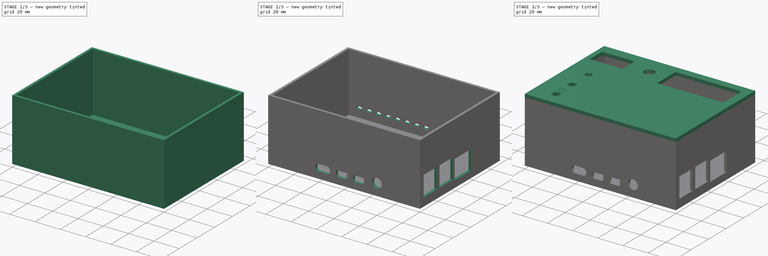
[diagram: build sequence overview — one tinted view per stage of 3, left to right]
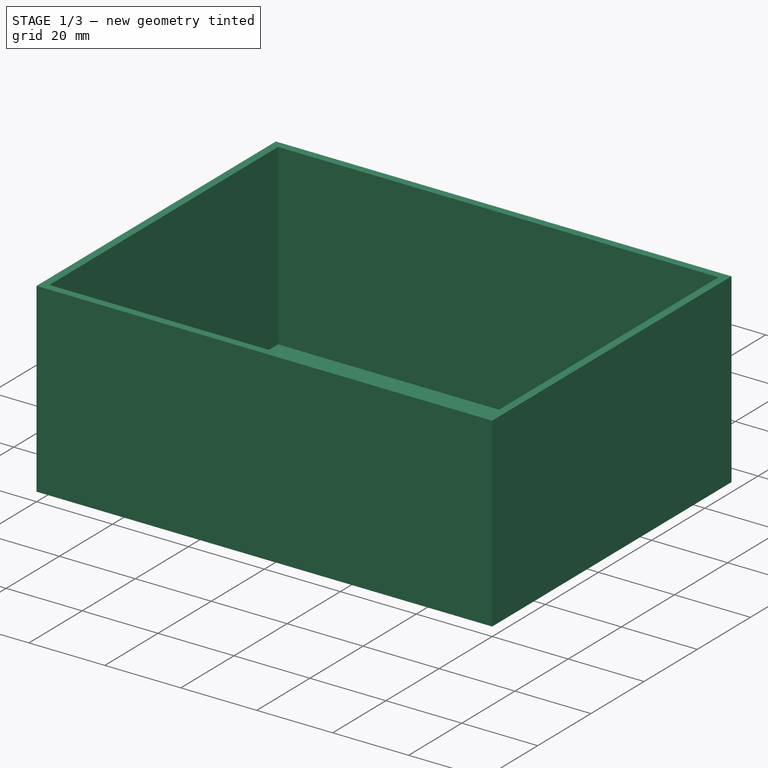
[diagram: stage 1 of 3 — iso view after this stage's code; geometry added in this stage tinted green]
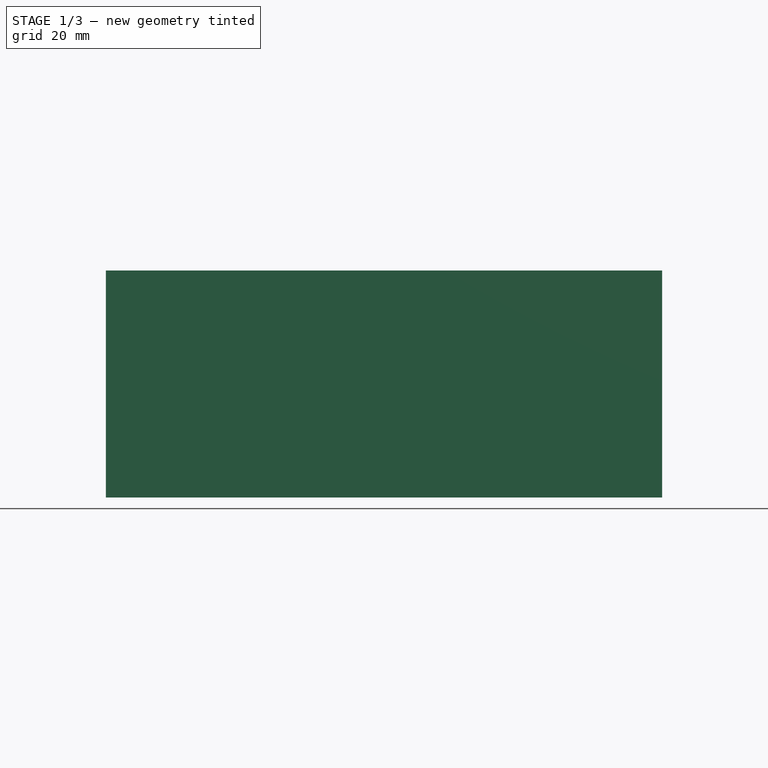
[diagram: stage 1 of 3 — front view after this stage's code; geometry added in this stage tinted green]
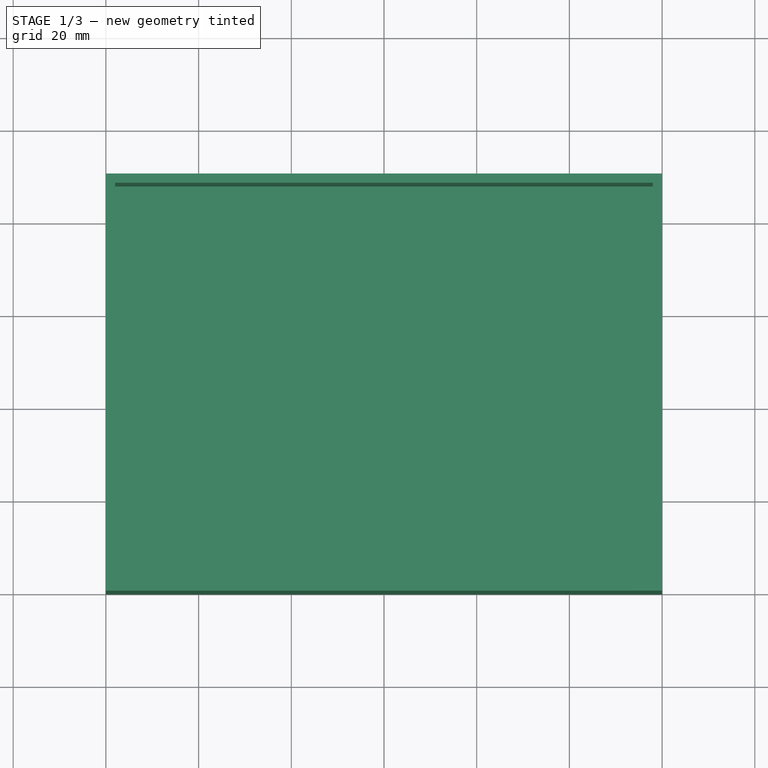
[diagram: stage 1 of 3 — top view after this stage's code; geometry added in this stage tinted green]
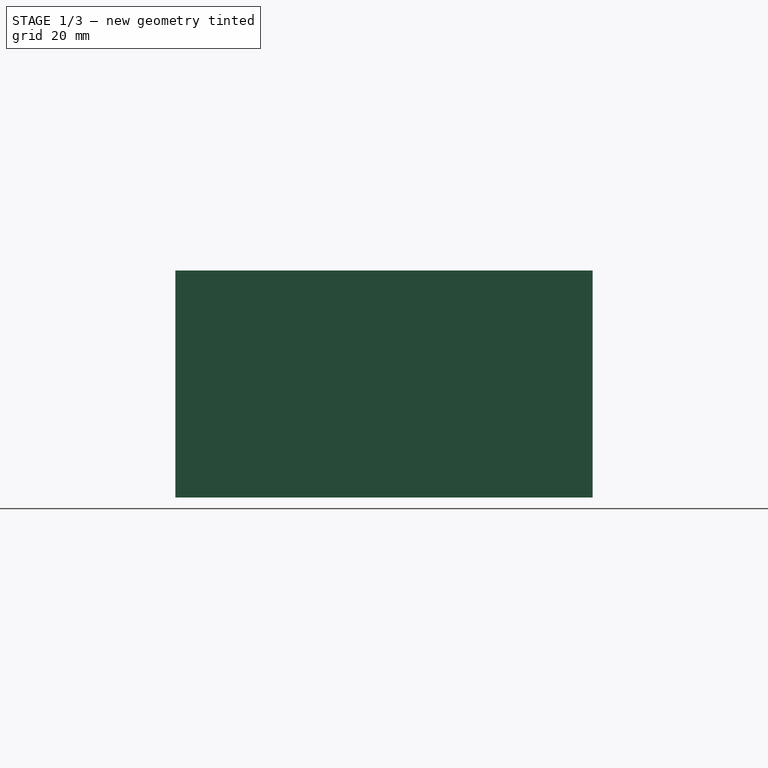
[diagram: stage 1 of 3 — right view after this stage's code; geometry added in this stage tinted green]
FCSTD DOCUMENT  (FreeCAD 0.19R24291 (Git))
Label: Case
License: All rights reserved
LicenseURL: http://en.wikipedia.org/wiki/All_rights_reserved
objects: Part::Feature×45, Sketcher::SketchObject×8, App::Part×4, PartDesign::Pad×4, PartDesign::Pocket×3, PartDesign::Body×2, PartDesign::ShapeBinder×1
note: 70 computed .brp shape members not serialized (recipe doc carries the construction recipe); baked Part::Feature solids carry a one-line shape summary decoded from their .brp

FEATURE [Part::Feature] Part__Feature  label="OLED 0.96' 128x64"
  shape: bbox 28.41 x 27.41 x 11.01 mm, 1667 faces, 5 solids (baked)
FEATURE [Part::Feature] Part__Feature001  label="662k - XC6206P182MR-G"
  Placement = pos=(-2.34296,7.147,-0.01) rot=(0,1,0;3.14159rad)
  shape: bbox 2.897 x 2.795 x 1.299 mm, 136 faces, 5 solids (baked)
FEATURE [Part::Feature] Part__Feature002  label="R SMD 472"
  Placement = pos=(6.12076,-0.312507,-0.01) rot=(0.707107,-0.707107,0;3.14159rad)
  shape: bbox 0.888 x 1.702 x 0.559 mm, 60 faces, 3 solids (baked)
FEATURE [Part::Feature] Part__Feature003  label="R SMD 473"
  Placement = pos=(4.26315,-0.312507,-0.01) rot=(0.707107,-0.707107,0;3.14159rad)
  shape: bbox 0.888 x 1.702 x 0.559 mm, 60 faces, 3 solids (baked)
FEATURE [Part::Feature] Part__Feature004  label="R SMD 474"
  Placement = pos=(2.42609,-0.312507,-0.01) rot=(0.707107,-0.707107,0;3.14159rad)
  shape: bbox 0.888 x 1.702 x 0.559 mm, 60 faces, 3 solids (baked)
FEATURE [Part::Feature] Part__Feature005  label="R SMD 914"
  Placement = pos=(7.97776,-0.312507,-0.01) rot=(-0.707107,0.707107,0;3.14159rad)
  shape: bbox 0.888 x 1.702 x 0.559 mm, 69 faces, 3 solids (baked)
FEATURE [Part::Feature] Part__Feature006  label="R SMD 915"
  Placement = pos=(8.59148,5.84697,-0.01) rot=(0,1,0;3.14159rad)
  shape: bbox 1.702 x 0.888 x 0.559 mm, 60 faces, 3 solids (baked)
FEATURE [Part::Feature] Part__Feature007  label="C SMD 0603"
  Placement = pos=(12.274,-0.304716,-0.01) rot=(0.707107,-0.707107,0;3.14159rad)
  shape: bbox 0.8 x 1.6 x 0.8 mm, 42 faces (baked)
FEATURE [Part::Feature] Part__Feature008  label="C SMD 0604"
  Placement = pos=(-6.73315,-0.304716,-0.81) rot=(0,0,1;1.5708rad)
  shape: bbox 0.8 x 1.6 x 0.8 mm, 42 faces (baked)
FEATURE [Part::Feature] Part__Feature009  label="C SMD 0605"
  Placement = pos=(10.0843,-0.304716,-0.01) rot=(0.707107,-0.707107,0;3.14159rad)
  shape: bbox 0.8 x 1.6 x 0.8 mm, 42 faces (baked)
FEATURE [Part::Feature] Part__Feature010  label="C SMD 0606"
  Placement = pos=(-1.28601,-0.304716,-0.01) rot=(0.707107,-0.707107,0;3.14159rad)
  shape: bbox 0.8 x 1.6 x 0.8 mm, 42 faces (baked)
FEATURE [Part::Feature] Part__Feature011  label="C SMD 0607"
  Placement = pos=(-6.20375,7.04452,-0.81) rot=(0,0,1;1.5708rad)
  shape: bbox 0.8 x 1.6 x 0.8 mm, 42 faces (baked)
FEATURE [Part::Feature] Part__Feature012  label="C SMD 0608"
  Placement = pos=(-9.69546,-0.304716,-0.01) rot=(0.707107,-0.707107,0;3.14159rad)
  shape: bbox 0.8 x 1.6 x 0.8 mm, 42 faces (baked)
FEATURE [Part::Feature] Part__Feature013  label="C SMD 0609"
  Placement = pos=(-12.1979,-0.304716,-0.01) rot=(0.707107,-0.707107,0;3.14159rad)
  shape: bbox 0.8 x 1.6 x 0.8 mm, 42 faces (baked)
FEATURE [Part::Feature] Part__Feature014  label="C SMD 0610"
  Placement = pos=(-4.83158,-0.304716,-0.01) rot=(0.707107,-0.707107,0;3.14159rad)
  shape: bbox 0.8 x 1.6 x 0.8 mm, 42 faces (baked)
FEATURE [Part::Feature] Part__Feature015  label="SOD323F_DIO"
  Placement = pos=(0.57176,-0.309924,-0.01) rot=(0.707107,0.707107,0;3.14159rad)
  shape: bbox 0.75 x 2.5 x 0.819 mm, 32 faces, 4 solids (baked)
FEATURE [App::Part] Pantalla_OLED_0_96__128x64  label="Pantalla OLED 0.96' 128x64"
  Group = -> [Part__Feature,Part__Feature001,Part__Feature002,Part__Feature003,Part__Feature004,Part__Feature005,Part__Feature006,Part__Feature007,Part__Feature008,Part__Feature009,Part__Feature010,Part__Feature011,Part__Feature012,Part__Feature013,Part__Feature014,Part__Feature015]
  Origin = -> Origin
  Placement = pos=(17,73,46) rot=(0,0,1;0rad)
FEATURE [Part::Feature] Part__Feature016  label="PCB, RPi4ModelB"
  shape: bbox 85 x 1.6 x 56 mm, 136 faces (baked)
FEATURE [Part::Feature] Part__Feature017  label="Broadcom BCM2711B0 CPU, RPi4ModelB"
  Placement = pos=(-13.25,0.8,-4.5) rot=(0,0,1;0rad)
  shape: bbox 15 x 2.3 x 15 mm, 29 faces, 2 solids (baked)
FEATURE [Part::Feature] Part__Feature018  label="2.54 mm DUPONT MALE PIN HEADER, POE, 2X2, RPi4ModelB"
  Placement = pos=(19,0.8,-18.36) rot=(0,0,1;0rad)
  shape: bbox 5.08 x 11.3 x 5.08 mm, 102 faces, 5 solids (baked)
FEATURE [Part::Feature] Part__Feature019  label="2.54 mm DUPONT MALE PIN HEADER, IO, 2X20, RPi4ModelB"
  Placement = pos=(-10,0.8,-24.5) rot=(0,0,1;0rad)
  shape: bbox 50.8 x 11.3 x 5.08 mm, 858 faces, 41 solids (baked)
FEATURE [Part::Feature] Part__Feature020  label="Camera Connector, RPi4ModelB"
  Placement = pos=(4,0.8,16.5) rot=(0,1,0;1.5708rad)
  shape: bbox 5.072 x 5.68 x 22.4 mm, 995 faces, 17 solids (baked)
FEATURE [Part::Feature] Part__Feature021  label="Microphone Plug, RPi4ModelB"
  Placement = pos=(11.5,0.8,21.65) rot=(0,0,1;0rad)
  shape: bbox 7.229 x 7.798 x 15 mm, 323 faces, 5 solids (baked)
FEATURE [Part::Feature] Part__Feature022  label="Display Connector, RPi4ModelB"
  Placement = pos=(-38.5,0.8,0) rot=(0,-1,0;1.5708rad)
  shape: bbox 5.072 x 5.68 x 22.4 mm, 995 faces, 17 solids (baked)
FEATURE [Part::Feature] Part__Feature023  label="Gigabit Ethernet Port, RPi4ModelB"
  Placement = pos=(45.5,7.55,-17.75) rot=(0,1,0;1.5708rad)
  shape: bbox 21.6 x 17.23 x 16.33 mm, 403 faces (baked)
FEATURE [Part::Feature] Part__Feature024  label="Female Micro HDMI Connector, RPi4ModelB"
  Placement = pos=(-3,0.8,27.3875) rot=(0,0,1;0rad)
  shape: bbox 6.501 x 3.516 x 7.501 mm, 1058 faces (baked)
FEATURE [Part::Feature] Part__Feature025  label="Female Micro HDMI Connector, RPi4ModelB001"
  Placement = pos=(-16.5,0.8,27.3875) rot=(0,0,1;0rad)
  shape: bbox 6.501 x 3.516 x 7.501 mm, 1058 faces (baked)
FEATURE [Part::Feature] Part__Feature026  label="Female USB Type C Connector, RPi4ModelB"
  Placement = pos=(-31.3,0.8,26.5419) rot=(0,0,1;0rad)
  shape: bbox 8.94 x 3.96 x 7.9 mm, 403 faces (baked)
FEATURE [Part::Feature] Part__Feature027  label="2X USB3.0 PORTS, RPi4ModelB"
  Placement = pos=(37.07,0.8,1) rot=(0,0,1;0rad)
  shape: bbox 17.47 x 19.41 x 15.83 mm, 1044 faces (baked)
FEATURE [Part::Feature] Part__Feature028  label="91D77 D9WHV 778K, 4 GB LPDDR4 SDRAM, RPi4ModelB"
  Placement = pos=(2.25,0.8,-4.5) rot=(0,0,1;0rad)
  shape: bbox 10 x 0.8 x 14.5 mm, 180 faces (baked)
FEATURE [Part::Feature] Part__Feature029  label="Cypress CYW43455 Wireless Module Cover, RPi4ModelB"
  Placement = pos=(-30.5,0.8,-14.5) rot=(0,0,1;0rad)
  shape: bbox 11 x 1.6 x 13 mm, 70 faces (baked)
FEATURE [Part::Feature] Part__Feature030  label="SD Card Slot, RPi4ModelB"
  Placement = pos=(-35.3,-0.8,-1e-14) rot=(0.707107,0,-0.707107;3.14159rad)
  shape: bbox 11.4 x 1.45 x 11.95 mm, 479 faces, 10 solids (baked)
FEATURE [Part::Feature] Part__Feature031  label="VIA VL805 PCIe USB 3.0 controller, RPi4ModelB"
  Placement = pos=(17.5,0.8,4) rot=(0,0,1;0rad)
  shape: bbox 8.8 x 0.8 x 8.8 mm, 398 faces (baked)
FEATURE [Part::Feature] Part__Feature032  label="2X USB2.0 PORTS, RPi4ModelB"
  Placement = pos=(37.065,0.65,19) rot=(0,0,1;0rad)
  shape: bbox 17.86 x 19.16 x 15.45 mm, 1086 faces (baked)
FEATURE [Part::Feature] Part__Feature033  label="Broadcom BCM54213PE Gigabit Ethernet Transceiver, RPi4ModelB"
  Placement = pos=(16.5,0.8,-10) rot=(0,0,1;0rad)
  shape: bbox 6.802 x 1.002 x 6.802 mm, 559 faces (baked)
FEATURE [Part::Feature] Part__Feature034  label="MxL7704 Universal PMIC, RPi4ModelB"
  Placement = pos=(-32.5,0.8,16) rot=(0,0,1;0rad)
  shape: bbox 5.4 x 0.8 x 5.4 mm, 311 faces (baked)
FEATURE [App::Part] Raspberry_Pi_4_Model_B  label="Raspberry Pi 4 Model B"
  Group = -> [Part__Feature016,Part__Feature017,Part__Feature018,Part__Feature019,Part__Feature020,Part__Feature021,Part__Feature022,Part__Feature023,Part__Feature024,Part__Feature025,Part__Feature026,Part__Feature027,Part__Feature028,Part__Feature029,Part__Feature030,Part__Feature031,Part__Feature032,Part__Feature033,Part__Feature034]
  Origin = -> Origin001
  Placement = pos=(74.5,30.5,5.5) rot=(1,0,0;1.5708rad)
FEATURE [Part::Feature] Part__Feature035  label="Push Switch_8x8_6pin_with Lock"
  Placement = pos=(17,29,40) rot=(0,0,1;0rad)
  shape: bbox 8.001 x 8.001 x 17.1 mm, 552 faces, 13 solids (baked)
FEATURE [Part::Feature] Part__Feature036  label="Buzzer_Passive"
  Placement = pos=(17,52,40) rot=(0,0,1;0rad)
  shape: bbox 12.83 x 12.83 x 10.65 mm, 50 faces, 4 solids (baked)
FEATURE [Part::Feature] Part__Feature038  label="4-7-display v2"
  Placement = pos=(62,64,50) rot=(1,0,0;1.5708rad)
  shape: bbox 50.6 x 19 x 14 mm, 230 faces (baked)
FEATURE [Part::Feature] Part__Feature039  label="Push Switch_8x8_6pin_with Lock001"
  Placement = pos=(17,11,40) rot=(0,0,1;0rad)
  shape: bbox 8.001 x 8.001 x 17.1 mm, 552 faces, 13 solids (baked)
FEATURE [Part::Feature] Part__Feature049  label="EC11-Base003"
  Placement = pos=(0,0,4.5) rot=(0,0,1;0rad)
  shape: bbox 11.7 x 12 x 8.7 mm, 30 faces (baked)
FEATURE [Part::Feature] Part__Feature050  label="EC11-Shaft-F001"
  Placement = pos=(0,0,4.5) rot=(0,0,1;0rad)
  shape: bbox 6 x 6 x 21.7 mm, 8 faces (baked)
FEATURE [Part::Feature] Part__Feature051  label="EC11-Housing-THT003"
  Placement = pos=(0,0,2.8) rot=(0,0,1;0rad)
  shape: bbox 12.4 x 14.9 x 8 mm, 379 faces, 7 solids (baked)
FEATURE [App::Part] EC11003
  Group = -> [Part__Feature049,Part__Feature050,Part__Feature051]
  Origin = -> Origin005
  Placement = pos=(47,74,43) rot=(0,0,1;0rad)
FEATURE [Sketcher::SketchObject] Sketch001
  FullyConstrained = true
  MapMode = 5
  Support = -> [XY_Plane006]
  sketch-geometry (4):
    g0: LineSegment StartX=0 StartY=0 StartZ=0 EndX=120 EndY=0 EndZ=0
    g1: LineSegment StartX=120 StartY=0 StartZ=0 EndX=120 EndY=90 EndZ=0
    g2: LineSegment StartX=120 StartY=90 StartZ=0 EndX=0 EndY=90 EndZ=0
    g3: LineSegment StartX=0 StartY=90 StartZ=0 EndX=0 EndY=0 EndZ=0
  constraints (11):
    c: Coincident(g0,g1)
    c: Coincident(g1,g2)
    c: Coincident(g2,g3)
    c: Coincident(g3,g0)
    c: Horizontal(g0)
    c: Horizontal(g2)
    c: Vertical(g1)
    c: Vertical(g3)
    c: Distance(g1) = 90
    c: Distance(g2) = 120
    c: Coincident(g-1,g0)
FEATURE [Part::Feature] Part__Feature052  label="BreadBoard"
  shape: bbox 83.8 x 8.01 x 10.57 mm, 314 faces (baked)
FEATURE [Part::Feature] Part__Feature053  label="BreadBoard001"
  shape: bbox 83.8 x 8.01 x 9.07 mm, 306 faces (baked)
FEATURE [Part::Feature] Part__Feature054  label="BreadBoard002"
  shape: bbox 83.8 x 8.01 x 35.74 mm, 3052 faces (baked)
FEATURE [App::Part] BreadBoard  label="BreadBoard003"
  Group = -> [Part__Feature052,Part__Feature053,Part__Feature054]
  Origin = -> Origin008
  Placement = pos=(74,32,47.5) rot=(0,-0.707107,0.707107;3.14159rad)
FEATURE [PartDesign::Pad] Pad
  Direction = (1,1,1)
  Length = 2
  Length2 = 100
  Profile = -> Sketch001
  Type = 0
FEATURE [Sketcher::SketchObject] Sketch
  FullyConstrained = true
  MapMode = 5
  Placement = pos=(0,0,2) rot=(0,0,1;0rad)
  Support = -> [Pad]
  sketch-geometry (8):
    g0: LineSegment StartX=0 StartY=0 StartZ=0 EndX=120 EndY=0 EndZ=0
    g1: LineSegment StartX=120 StartY=0 StartZ=0 EndX=120 EndY=90 EndZ=0
    g2: LineSegment StartX=120 StartY=90 StartZ=0 EndX=0 EndY=90 EndZ=0
    g3: LineSegment StartX=0 StartY=90 StartZ=0 EndX=0 EndY=0 EndZ=0
    g4: LineSegment StartX=2 StartY=2 StartZ=0 EndX=118 EndY=2 EndZ=0
    g5: LineSegment StartX=118 StartY=2 StartZ=0 EndX=118 EndY=88 EndZ=0
    g6: LineSegment StartX=118 StartY=88 StartZ=0 EndX=2 EndY=88 EndZ=0
    g7: LineSegment StartX=2 StartY=88 StartZ=0 EndX=2 EndY=2 EndZ=0
  constraints (23):
    c: Coincident(g0,g1)
    c: Coincident(g1,g2)
    c: Coincident(g2,g3)
    c: Coincident(g3,g0)
    c: Horizontal(g0)
    c: Horizontal(g2)
    c: Vertical(g1)
    c: Vertical(g3)
    c: Distance(g1) = 90
    c: Distance(g2) = 120
    c: Coincident(g0,g-1)
    c: Coincident(g4,g5)
    c: Coincident(g5,g6)
    c: Coincident(g6,g7)
    c: Coincident(g7,g4)
    c: Horizontal(g4)
    c: Horizontal(g6)
    c: Vertical(g5)
    c: Vertical(g7)
    c: DistanceY(g0,g4) = 2
    c: DistanceX(g0,g4) = 2
    c: DistanceX(g5,g1) = 2
    c: DistanceY(g5,g1) = 2
FEATURE [PartDesign::Pad] Pad001
  BaseFeature = -> Pad
  Direction = (1,1,1)
  Length = 47
  Length2 = 100
  Profile = -> Sketch
  Type = 0
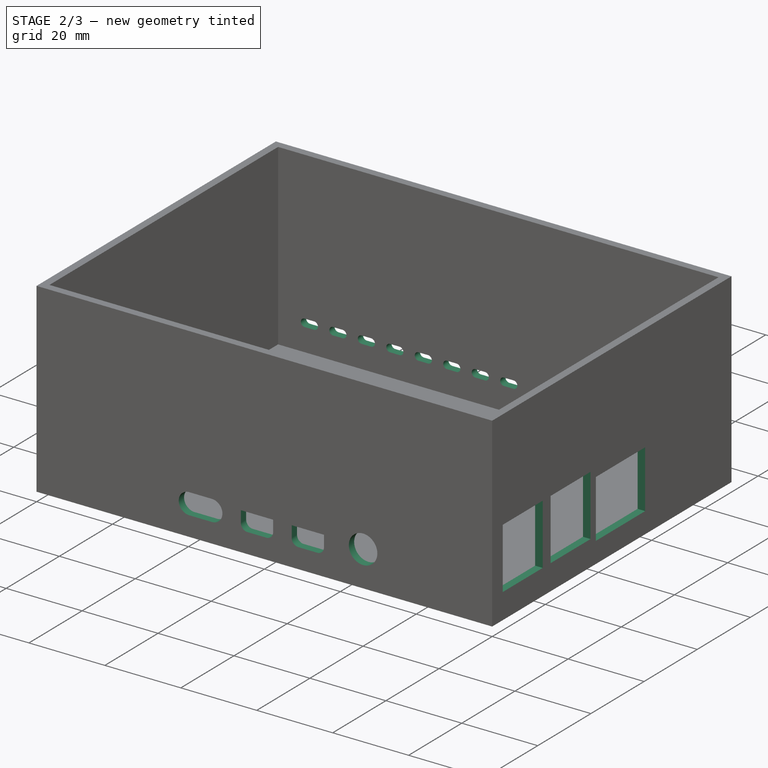
[diagram: stage 2 of 3 — iso view after this stage's code; geometry added in this stage tinted green]
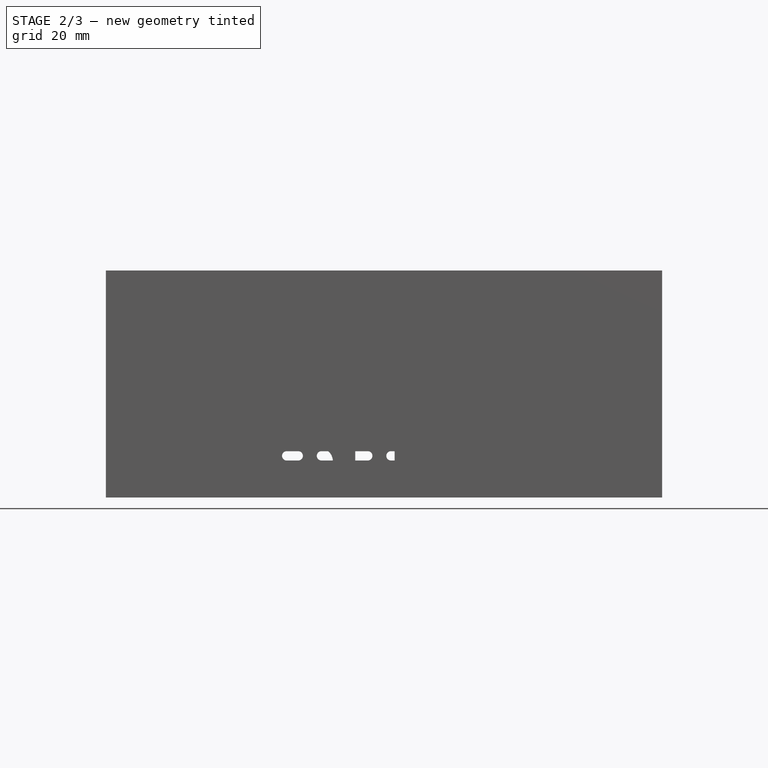
[diagram: stage 2 of 3 — front view after this stage's code; geometry added in this stage tinted green]
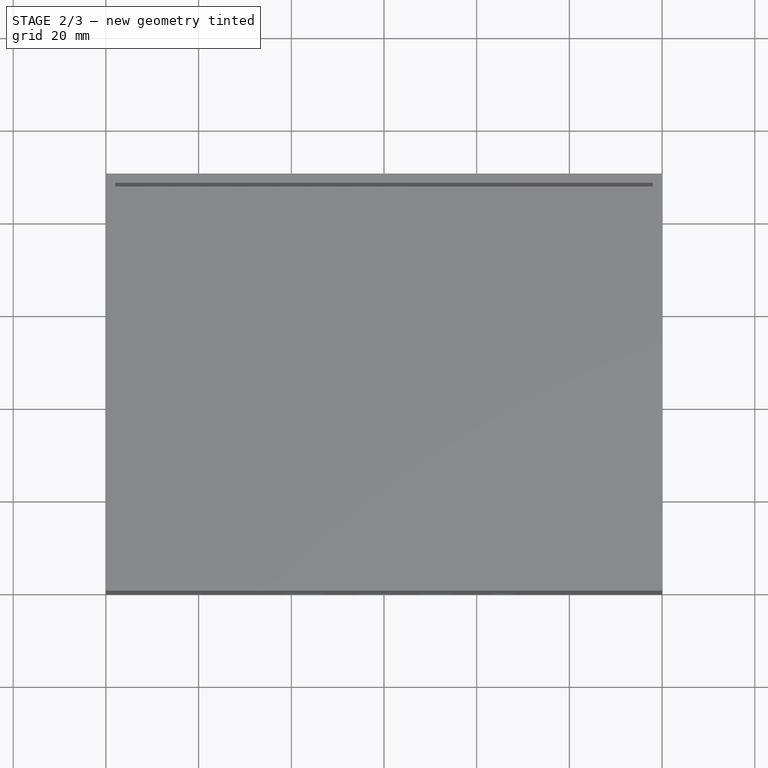
[diagram: stage 2 of 3 — top view after this stage's code; geometry added in this stage tinted green]
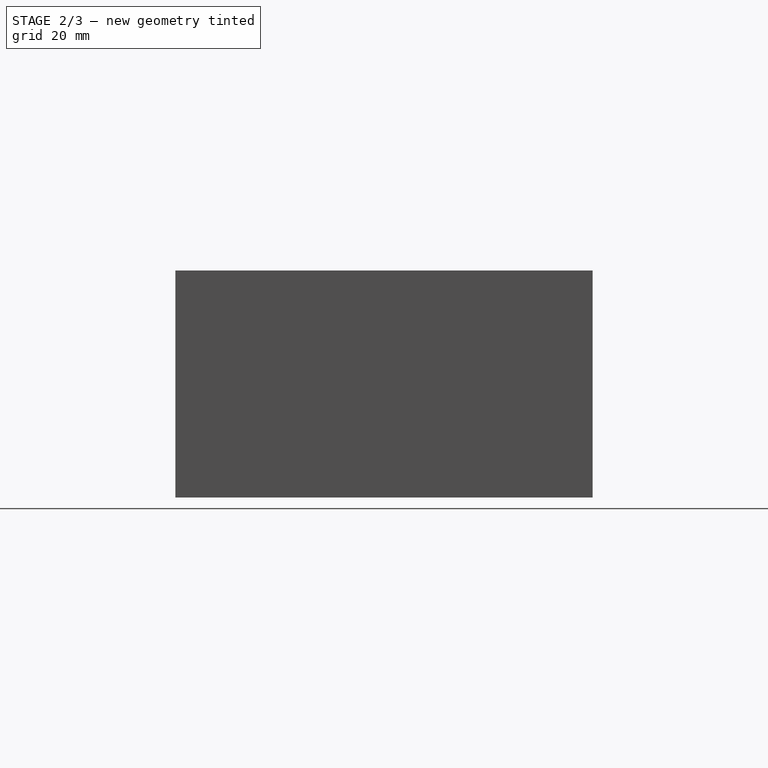
[diagram: stage 2 of 3 — right view after this stage's code; geometry added in this stage tinted green]
FEATURE [Sketcher::SketchObject] Sketch002
  FullyConstrained = true
  MapMode = 5
  Placement = pos=(120,0,0) rot=(0.57735,0.57735,0.57735;2.0944rad)
  Support = -> [Pad001]
  sketch-geometry (12):
    g0: LineSegment StartX=4 StartY=6.7 StartZ=0 EndX=19 EndY=6.7 EndZ=0
    g1: LineSegment StartX=19 StartY=6.7 StartZ=0 EndX=19 EndY=22.7 EndZ=0
    g2: LineSegment StartX=19 StartY=22.7 StartZ=0 EndX=4 EndY=22.7 EndZ=0
    g3: LineSegment StartX=4 StartY=22.7 StartZ=0 EndX=4 EndY=6.7 EndZ=0
    g4: LineSegment StartX=37 StartY=22.7 StartZ=0 EndX=22 EndY=22.7 EndZ=0
    g5: LineSegment StartX=22 StartY=22.7 StartZ=0 EndX=22 EndY=6.7 EndZ=0
    g6: LineSegment StartX=22 StartY=6.7 StartZ=0 EndX=37 EndY=6.7 EndZ=0
    g7: LineSegment StartX=37 StartY=6.7 StartZ=0 EndX=37 EndY=22.7 EndZ=0
    g8: LineSegment StartX=39 StartY=5.5 StartZ=0 EndX=57.55 EndY=5.5 EndZ=0
    g9: LineSegment StartX=57.55 StartY=5.5 StartZ=0 EndX=57.55 EndY=20.7 EndZ=0
    g10: LineSegment StartX=57.55 StartY=20.7 StartZ=0 EndX=39 EndY=20.7 EndZ=0
    g11: LineSegment StartX=39 StartY=20.7 StartZ=0 EndX=39 EndY=5.5 EndZ=0
  constraints (36):
    c: Coincident(g0,g1)
    c: Coincident(g1,g2)
    c: Coincident(g2,g3)
    c: Coincident(g3,g0)
    c: Horizontal(g0)
    c: Horizontal(g2)
    c: Vertical(g1)
    c: Vertical(g3)
    c: Coincident(g4,g5)
    c: Coincident(g5,g6)
    c: Coincident(g6,g7)
    c: Coincident(g7,g4)
    c: Horizontal(g4)
    c: Horizontal(g6)
    c: Vertical(g5)
    c: Vertical(g7)
    c: Coincident(g8,g9)
    c: Coincident(g9,g10)
    c: Coincident(g10,g11)
    c: Coincident(g11,g8)
    c: Horizontal(g8)
    c: Horizontal(g10)
    c: Vertical(g9)
    c: Vertical(g11)
    c: DistanceX(g-1,g0) = 4
    c: DistanceY(g-1,g0) = 6.7
    c: DistanceY(g-1,g5) = 6.7
    c: DistanceY(g-1,g8) = 5.5
    c: DistanceX(g-1,g5) = 22
    c: DistanceX(g-1,g8) = 39
    c: Distance(g0) = 15
    c: Distance(g3) = 16
    c: Distance(g5) = 16
    c: Distance(g6) = 15
    c: Distance(g10) = 18.55
    c: Distance(g9) = 15.2
FEATURE [PartDesign::Pocket] Pocket
  BaseFeature = -> Pad001
  Length = 5
  Length2 = 100
  Profile = -> Sketch002
  Type = 0
FEATURE [Sketcher::SketchObject] Sketch003
  FullyConstrained = true
  MapMode = 5
  Placement = pos=(0,0,0) rot=(1,0,0;1.5708rad)
  Support = -> [Pocket]
  sketch-geometry (17):
    g0: Circle CenterX=86 CenterY=9.3 CenterZ=0 NormalX=0 NormalY=0 NormalZ=1 AngleXU=0 Radius=3.75
    g1: ArcOfCircle CenterX=40.2 CenterY=7.9 CenterZ=0 NormalX=0 NormalY=0 NormalZ=1 AngleXU=0 Radius=2.75 StartAngle=1.5708 EndAngle=4.71239
    g2: ArcOfCircle CenterX=46.2 CenterY=7.9 CenterZ=0 NormalX=0 NormalY=0 NormalZ=1 AngleXU=0 Radius=2.75 StartAngle=4.71239 EndAngle=7.85398
    g3: LineSegment StartX=40.2 StartY=5.15 StartZ=0 EndX=46.2 EndY=5.15 EndZ=0
    g4: LineSegment StartX=40.2 StartY=10.65 StartZ=0 EndX=46.2 EndY=10.65 EndZ=0
    g5: LineSegment StartX=53.8 StartY=10 StartZ=0 EndX=62.3 EndY=10 EndZ=0
    g6: LineSegment StartX=62.3 StartY=10 StartZ=0 EndX=62.3 EndY=7 EndZ=0
    g7: LineSegment StartX=60.55 StartY=5.25 StartZ=0 EndX=55.55 EndY=5.25 EndZ=0
    g8: LineSegment StartX=53.8 StartY=7 StartZ=0 EndX=53.8 EndY=10 EndZ=0
    g9: LineSegment StartX=67.2 StartY=10 StartZ=0 EndX=75.7 EndY=10 EndZ=0
    g10: LineSegment StartX=75.7 StartY=10 StartZ=0 EndX=75.7 EndY=7 EndZ=0
    g11: LineSegment StartX=73.95 StartY=5.25 StartZ=0 EndX=68.95 EndY=5.25 EndZ=0
    g12: LineSegment StartX=67.2 StartY=7 StartZ=0 EndX=67.2 EndY=10 EndZ=0
    g13: ArcOfCircle CenterX=55.55 CenterY=7 CenterZ=0 NormalX=0 NormalY=0 NormalZ=1 AngleXU=0 Radius=1.75 StartAngle=3.14159 EndAngle=4.71239
    g14: ArcOfCircle CenterX=60.55 CenterY=7 CenterZ=0 NormalX=0 NormalY=0 NormalZ=1 AngleXU=0 Radius=1.75 StartAngle=4.71239 EndAngle=6.28319
    g15: ArcOfCircle CenterX=68.95 CenterY=7 CenterZ=0 NormalX=0 NormalY=0 NormalZ=1 AngleXU=0 Radius=1.75 StartAngle=3.14159 EndAngle=4.71239
    g16: ArcOfCircle CenterX=73.95 CenterY=7 CenterZ=0 NormalX=0 NormalY=0 NormalZ=1 AngleXU=0 Radius=1.75 StartAngle=4.71239 EndAngle=6.28319
  constraints (45):
    c: Tangent(g1,g4) = 1.5708
    c: Tangent(g1,g3) = -1.5708
    c: Tangent(g3,g2) = -1.5708
    c: Tangent(g4,g2) = 1.5708
    c: Horizontal(g3)
    c: Equal(g1,g2)
    c: Coincident(g5,g6)
    c: Coincident(g8,g5)
    c: Horizontal(g5)
    c: Horizontal(g7)
    c: Vertical(g6)
    c: Vertical(g8)
    c: Coincident(g9,g10)
    c: Coincident(g12,g9)
    c: Horizontal(g9)
    c: Horizontal(g11)
    c: Vertical(g10)
    c: Vertical(g12)
    c: Diameter(g0) = 7.5
    c: DistanceY(g-1,g0) = 9.3
    c: DistanceX(g-1,g0) = 86
    c: DistanceX(g-1,g1) = 40.2
    c: DistanceY(g-1,g1) = 7.9
    c: DistanceY(g2,g2) = 5.5
    c: DistanceX(g3,g3) = 6
    c: DistanceX(g-1,g5) = 53.8
    c: DistanceX(g-1,g9) = 67.2
    c: Equal(g9,g5)
    c: Equal(g6,g10)
    c: Tangent(g7,g13) = 1.5708
    c: Tangent(g8,g13) = 1.5708
    c: Tangent(g7,g14) = 1.5708
    c: Tangent(g6,g14) = 1.5708
    c: Tangent(g11,g15) = 1.5708
    c: Tangent(g12,g15) = 1.5708
    c: Tangent(g10,g16) = 1.5708
    c: Tangent(g11,g16) = 1.5708
    c: DistanceY(g-1,g5) = 10
    c: DistanceY(g-1,g9) = 10
    c: Equal(g15,g16)
    c: Equal(g14,g13)
    c: Equal(g14,g15)
    c: DistanceX(g5,g5) = 8.5
    c: DistanceX(g13,g14) = 5
    c: DistanceY(g6,g6) = 3
FEATURE [PartDesign::Pocket] Pocket001
  BaseFeature = -> Pocket
  Length = 5
  Length2 = 100
  Profile = -> Sketch003
  Type = 0
FEATURE [PartDesign::Body] Body001  label="Lid"
  Group = -> [CopyPocket001,Sketch005,Pad002,Sketch006,Pad003]
  Origin = -> Origin009
  Tip = -> Pad003
FEATURE [Sketcher::SketchObject] Sketch007
  FullyConstrained = true
  MapMode = 5
  Placement = pos=(0,90,0) rot=(0,0.707107,0.707107;3.14159rad)
  Support = -> [Pocket001]
  sketch-geometry (32):
    g0: ArcOfCircle CenterX=-64 CenterY=9 CenterZ=0 NormalX=0 NormalY=0 NormalZ=1 AngleXU=0 Radius=1 StartAngle=1.5708 EndAngle=4.71239
    g1: ArcOfCircle CenterX=-61.5 CenterY=9 CenterZ=0 NormalX=0 NormalY=0 NormalZ=1 AngleXU=0 Radius=1 StartAngle=4.71239 EndAngle=7.85398
    g2: LineSegment StartX=-64 StartY=8 StartZ=0 EndX=-61.5 EndY=8 EndZ=0
    g3: LineSegment StartX=-64 StartY=10 StartZ=0 EndX=-61.5 EndY=10 EndZ=0
    g4: ArcOfCircle CenterX=-56.5 CenterY=9 CenterZ=0 NormalX=0 NormalY=0 NormalZ=1 AngleXU=0 Radius=1 StartAngle=1.5708 EndAngle=4.71239
    g5: ArcOfCircle CenterX=-54 CenterY=9 CenterZ=0 NormalX=0 NormalY=0 NormalZ=1 AngleXU=0 Radius=1 StartAngle=4.71239 EndAngle=7.85398
    g6: LineSegment StartX=-56.5 StartY=8 StartZ=0 EndX=-54 EndY=8 EndZ=0
    g7: LineSegment StartX=-56.5 StartY=10 StartZ=0 EndX=-54 EndY=10 EndZ=0
    g8: ArcOfCircle CenterX=-49 CenterY=9 CenterZ=0 NormalX=0 NormalY=0 NormalZ=1 AngleXU=0 Radius=1 StartAngle=1.5708 EndAngle=4.71239
    g9: ArcOfCircle CenterX=-46.5 CenterY=9 CenterZ=0 NormalX=0 NormalY=0 NormalZ=1 AngleXU=0 Radius=1 StartAngle=4.71239 EndAngle=7.85398
    g10: LineSegment StartX=-49 StartY=8 StartZ=0 EndX=-46.5 EndY=8 EndZ=0
    g11: LineSegment StartX=-49 StartY=10 StartZ=0 EndX=-46.5 EndY=10 EndZ=0
    g12: ArcOfCircle CenterX=-41.5 CenterY=9 CenterZ=0 NormalX=0 NormalY=0 NormalZ=1 AngleXU=0 Radius=1 StartAngle=1.5708 EndAngle=4.71239
    g13: ArcOfCircle CenterX=-39 CenterY=9 CenterZ=0 NormalX=0 NormalY=0 NormalZ=1 AngleXU=0 Radius=1 StartAngle=4.71239 EndAngle=7.85398
    g14: LineSegment StartX=-41.5 StartY=8 StartZ=0 EndX=-39 EndY=8 EndZ=0
    g15: LineSegment StartX=-41.5 StartY=10 StartZ=0 EndX=-39 EndY=10 EndZ=0
    g16: ArcOfCircle CenterX=-34 CenterY=9 CenterZ=0 NormalX=0 NormalY=0 NormalZ=1 AngleXU=0 Radius=1 StartAngle=1.5708 EndAngle=4.71239
    g17: ArcOfCircle CenterX=-31.5 CenterY=9 CenterZ=0 NormalX=0 NormalY=0 NormalZ=1 AngleXU=0 Radius=1 StartAngle=4.71239 EndAngle=7.85398
    g18: LineSegment StartX=-34 StartY=8 StartZ=0 EndX=-31.5 EndY=8 EndZ=0
    g19: LineSegment StartX=-34 StartY=10 StartZ=0 EndX=-31.5 EndY=10 EndZ=0
    g20: ArcOfCircle CenterX=-26.5 CenterY=9 CenterZ=0 NormalX=0 NormalY=0 NormalZ=1 AngleXU=0 Radius=1 StartAngle=1.5708 EndAngle=4.71239
    g21: ArcOfCircle CenterX=-24 CenterY=9 CenterZ=0 NormalX=0 NormalY=0 NormalZ=1 AngleXU=0 Radius=1 StartAngle=4.71239 EndAngle=7.85398
    g22: LineSegment StartX=-26.5 StartY=8 StartZ=0 EndX=-24 EndY=8 EndZ=0
    g23: LineSegment StartX=-26.5 StartY=10 StartZ=0 EndX=-24 EndY=10 EndZ=0
    g24: ArcOfCircle CenterX=-19 CenterY=9 CenterZ=0 NormalX=0 NormalY=0 NormalZ=1 AngleXU=0 Radius=1 StartAngle=1.5708 EndAngle=4.71239
    g25: ArcOfCircle CenterX=-16.5 CenterY=9 CenterZ=0 NormalX=0 NormalY=0 NormalZ=1 AngleXU=0 Radius=1 StartAngle=4.71239 EndAngle=7.85398
    g26: LineSegment StartX=-19 StartY=8 StartZ=0 EndX=-16.5 EndY=8 EndZ=0
    g27: LineSegment StartX=-19 StartY=10 StartZ=0 EndX=-16.5 EndY=10 EndZ=0
    g28: ArcOfCircle CenterX=-11.5 CenterY=9 CenterZ=0 NormalX=0 NormalY=0 NormalZ=1 AngleXU=0 Radius=1 StartAngle=1.5708 EndAngle=4.71239
    g29: ArcOfCircle CenterX=-9 CenterY=9 CenterZ=0 NormalX=0 NormalY=0 NormalZ=1 AngleXU=0 Radius=1 StartAngle=4.71239 EndAngle=7.85398
    g30: LineSegment StartX=-11.5 StartY=8 StartZ=0 EndX=-9 EndY=8 EndZ=0
    g31: LineSegment StartX=-11.5 StartY=10 StartZ=0 EndX=-9 EndY=10 EndZ=0
  constraints (80):
    c: Tangent(g0,g3) = 1.5708
    c: Tangent(g0,g2) = -1.5708
    c: Tangent(g2,g1) = -1.5708
    c: Tangent(g3,g1) = 1.5708
    c: Horizontal(g2)
    c: Equal(g0,g1)
    c: DistanceY(g1,g1) = 2
    c: DistanceX(g3,g3) = 2.5
    c: DistanceY(g-1,g0) = 9
    c: Tangent(g4,g7) = 1.5708
    c: Tangent(g4,g6) = -1.5708
    c: Tangent(g6,g5) = -1.5708
    c: Tangent(g7,g5) = 1.5708
    c: Horizontal(g6)
    c: Equal(g4,g5)
    c: Equal(g1,g5) = 2
    c: Equal(g3,g7) = 2.5
    c: Tangent(g8,g11) = 1.5708
    c: Tangent(g8,g10) = -1.5708
    c: Tangent(g10,g9) = -1.5708
    c: Tangent(g11,g9) = 1.5708
    c: Horizontal(g10)
    c: Equal(g8,g9)
    c: Equal(g1,g9) = 2
    c: Equal(g3,g11) = 2.5
    c: Tangent(g12,g15) = 1.5708
    c: Tangent(g12,g14) = -1.5708
    c: Tangent(g14,g13) = -1.5708
    c: Tangent(g15,g13) = 1.5708
    c: Horizontal(g14)
    c: Equal(g12,g13)
    c: Equal(g1,g13) = 2
    c: Equal(g3,g15) = 2.5
    c: Tangent(g16,g19) = 1.5708
    c: Tangent(g16,g18) = -1.5708
    c: Tangent(g18,g17) = -1.5708
    c: Tangent(g19,g17) = 1.5708
    c: Horizontal(g18)
    c: Equal(g16,g17)
    c: Equal(g1,g17) = 2
    c: Equal(g3,g19) = 2.5
    c: Tangent(g20,g23) = 1.5708
    c: Tangent(g20,g22) = -1.5708
    c: Tangent(g22,g21) = -1.5708
    c: Tangent(g23,g21) = 1.5708
    c: Horizontal(g22)
    c: Equal(g20,g21)
    c: Equal(g1,g21) = 2
    c: Equal(g3,g23) = 2.5
    c: Tangent(g24,g27) = 1.5708
    c: Tangent(g24,g26) = -1.5708
    c: Tangent(g26,g25) = -1.5708
    c: Tangent(g27,g25) = 1.5708
    c: Horizontal(g26)
    c: Equal(g24,g25)
    c: Equal(g1,g25) = 2
    c: Equal(g3,g27) = 2.5
    c: Tangent(g28,g31) = 1.5708
    c: Tangent(g28,g30) = -1.5708
    c: Tangent(g30,g29) = -1.5708
    c: Tangent(g31,g29) = 1.5708
    c: Horizontal(g30)
    c: Equal(g28,g29)
    c: Equal(g1,g29) = 2
    c: Equal(g3,g31) = 2.5
    c: Horizontal(g1,g4)
    c: Horizontal(g5,g8)
    c: Horizontal(g9,g12)
    c: Horizontal(g13,g16)
    c: Horizontal(g17,g20)
    c: Horizontal(g21,g24)
    c: Horizontal(g25,g28)
    c: DistanceX(g1,g4) = 5
    c: DistanceX(g5,g8) = 5
    c: DistanceX(g9,g12) = 5
    c: DistanceX(g13,g16) = 5
    c: DistanceX(g17,g20) = 5
    c: DistanceX(g21,g24) = 5
    c: DistanceX(g25,g28) = 5
    c: DistanceX(g29,g-1) = 9
FEATURE [PartDesign::Pocket] Pocket002
  BaseFeature = -> Pocket001
  Length = 5
  Length2 = 100
  Profile = -> Sketch007
  Type = 0
FEATURE [PartDesign::Body] Body  label="Box"
  Group = -> [Sketch001,Pad,Sketch,Pad001,Sketch002,Pocket,Sketch003,Pocket001,Sketch004,Sketch007,Pocket002]
  Origin = -> Origin006
  Tip = -> Pocket002
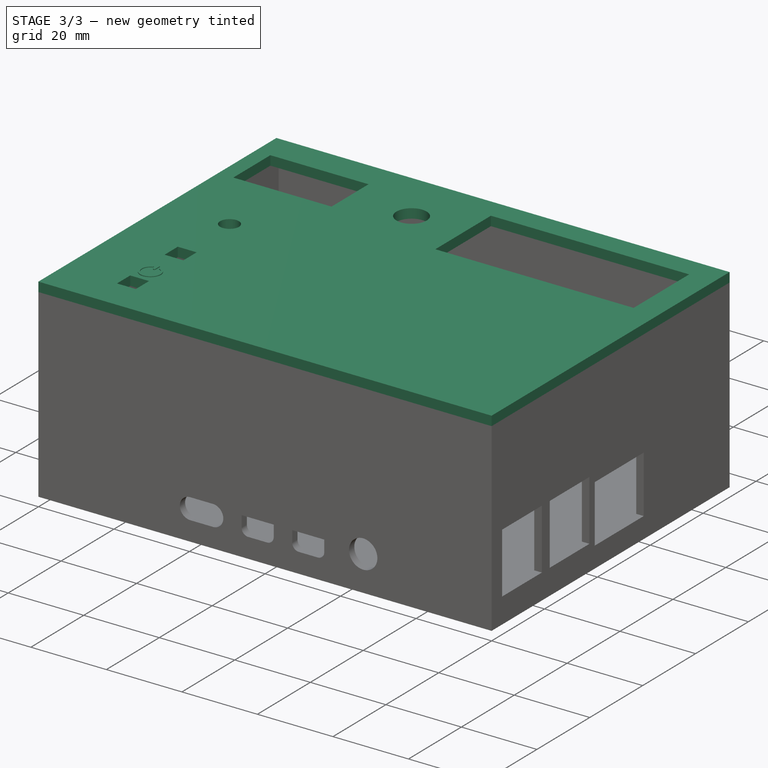
[diagram: stage 3 of 3 — iso view after this stage's code; geometry added in this stage tinted green]
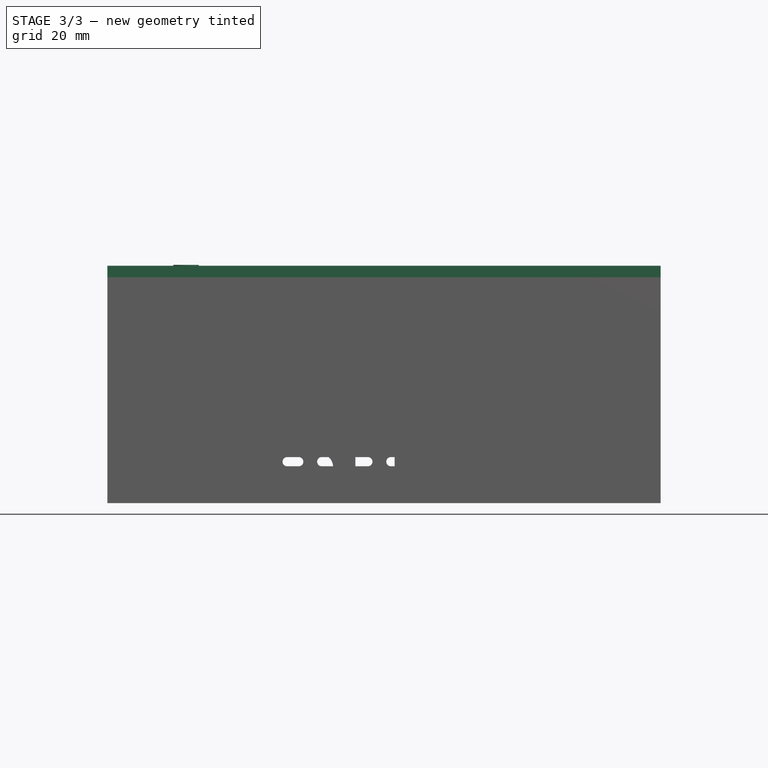
[diagram: stage 3 of 3 — front view after this stage's code; geometry added in this stage tinted green]
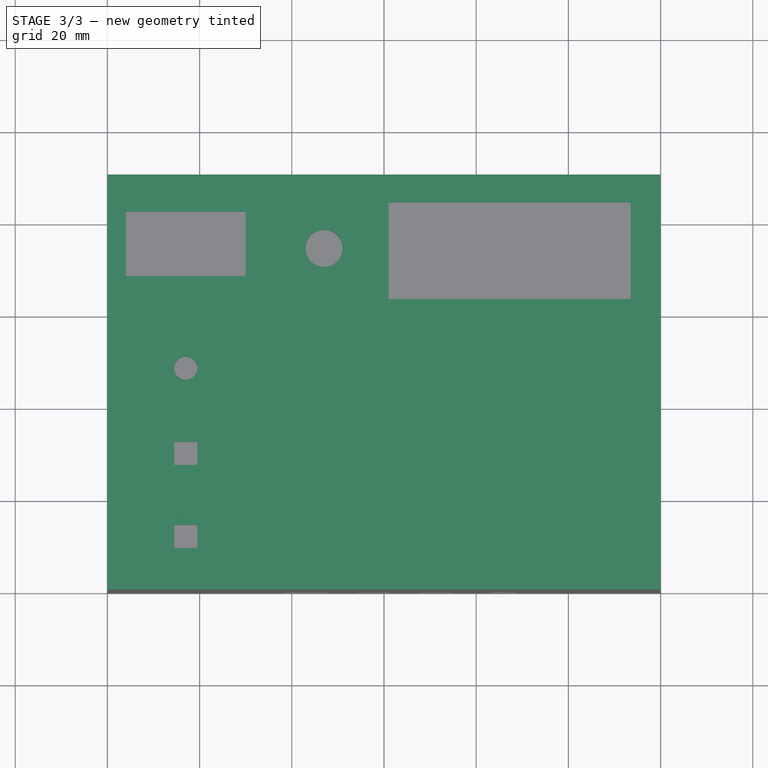
[diagram: stage 3 of 3 — top view after this stage's code; geometry added in this stage tinted green]
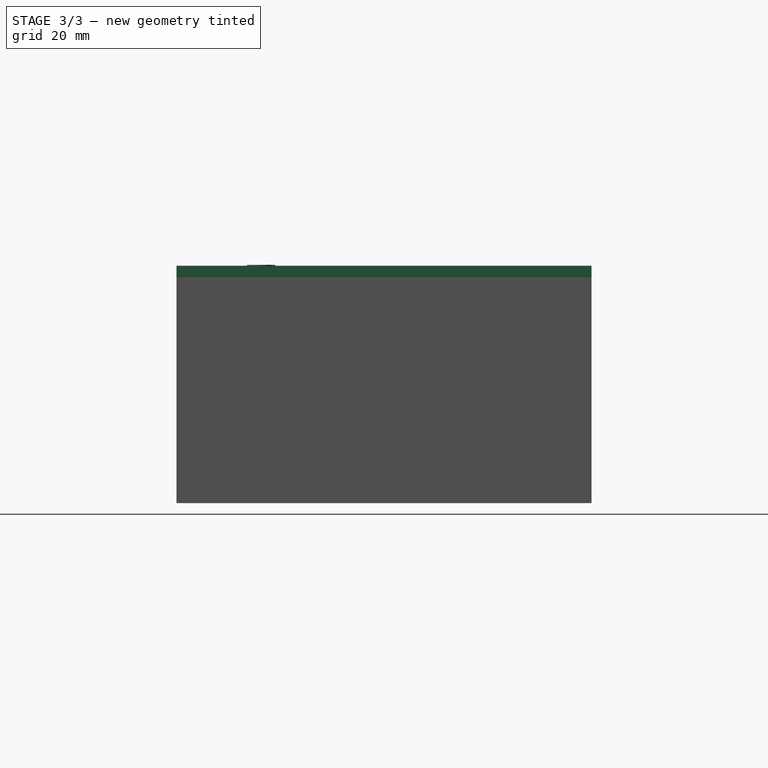
[diagram: stage 3 of 3 — right view after this stage's code; geometry added in this stage tinted green]
FEATURE [Sketcher::SketchObject] Sketch004
  FullyConstrained = false
  MapMode = 5
  Placement = pos=(0,0,49) rot=(0,0,1;0rad)
  Support = -> [Pocket001]
  sketch-geometry (44):
    g0: LineSegment StartX=0 StartY=0 StartZ=0 EndX=120 EndY=0 EndZ=0
    g1: LineSegment StartX=120 StartY=0 StartZ=0 EndX=120 EndY=90 EndZ=0
    g2: LineSegment StartX=120 StartY=90 StartZ=0 EndX=0 EndY=90 EndZ=0
    g3: LineSegment StartX=0 StartY=90 StartZ=0 EndX=0 EndY=0 EndZ=0
    g4: LineSegment StartX=113.5 StartY=84 StartZ=0 EndX=61 EndY=84 EndZ=0
    g5: LineSegment StartX=61 StartY=84 StartZ=0 EndX=61 EndY=63 EndZ=0
    g6: LineSegment StartX=61 StartY=63 StartZ=0 EndX=113.5 EndY=63 EndZ=0
    g7: LineSegment StartX=113.5 StartY=63 StartZ=0 EndX=113.5 EndY=84 EndZ=0
    g8: Circle CenterX=47 CenterY=74 CenterZ=0 NormalX=0 NormalY=0 NormalZ=1 AngleXU=0 Radius=4
    g9: LineSegment StartX=4 StartY=82 StartZ=0 EndX=30 EndY=82 EndZ=0
    g10: LineSegment StartX=30 StartY=82 StartZ=0 EndX=30 EndY=68 EndZ=0
    g11: LineSegment StartX=30 StartY=68 StartZ=0 EndX=4 EndY=68 EndZ=0
    g12: LineSegment StartX=4 StartY=68 StartZ=0 EndX=4 EndY=82 EndZ=0
    g13: Circle CenterX=17 CenterY=48 CenterZ=0 NormalX=0 NormalY=0 NormalZ=1 AngleXU=0 Radius=2.5
    g14: LineSegment StartX=14.5 StartY=32 StartZ=0 EndX=19.5 EndY=32 EndZ=0
    g15: LineSegment StartX=19.5 StartY=32 StartZ=0 EndX=19.5 EndY=27 EndZ=0
    g16: LineSegment StartX=19.5 StartY=27 StartZ=0 EndX=14.5 EndY=27 EndZ=0
    g17: LineSegment StartX=14.5 StartY=27 StartZ=0 EndX=14.5 EndY=32 EndZ=0
    g18: LineSegment StartX=14.5 StartY=14 StartZ=0 EndX=19.5 EndY=14 EndZ=0
    g19: LineSegment StartX=19.5 StartY=14 StartZ=0 EndX=19.5 EndY=9 EndZ=0
    g20: LineSegment StartX=19.5 StartY=9 StartZ=0 EndX=14.5 EndY=9 EndZ=0
    g21: LineSegment StartX=14.5 StartY=9 StartZ=0 EndX=14.5 EndY=14 EndZ=0
    g22: LineSegment StartX=159.265 StartY=26.8562 StartZ=0 EndX=279.265 EndY=26.8562 EndZ=0
    g23: LineSegment StartX=279.265 StartY=26.8562 StartZ=0 EndX=279.265 EndY=116.856 EndZ=0
    g24: LineSegment StartX=279.265 StartY=116.856 StartZ=0 EndX=159.265 EndY=116.856 EndZ=0
    g25: LineSegment StartX=159.265 StartY=116.856 StartZ=0 EndX=159.265 EndY=26.8562 EndZ=0
    g26: LineSegment StartX=272.765 StartY=110.856 StartZ=0 EndX=220.265 EndY=110.856 EndZ=0
    g27: LineSegment StartX=220.265 StartY=110.856 StartZ=0 EndX=220.265 EndY=89.8562 EndZ=0
    g28: LineSegment StartX=220.265 StartY=89.8562 StartZ=0 EndX=272.765 EndY=89.8562 EndZ=0
    g29: LineSegment StartX=272.765 StartY=89.8562 StartZ=0 EndX=272.765 EndY=110.856 EndZ=0
    g30: Circle CenterX=206.265 CenterY=100.856 CenterZ=0 NormalX=0 NormalY=0 NormalZ=1 AngleXU=0 Radius=4
    g31: LineSegment StartX=163.265 StartY=108.856 StartZ=0 EndX=189.265 EndY=108.856 EndZ=0
    g32: LineSegment StartX=189.265 StartY=108.856 StartZ=0 EndX=189.265 EndY=94.8562 EndZ=0
    g33: LineSegment StartX=189.265 StartY=94.8562 StartZ=0 EndX=163.265 EndY=94.8562 EndZ=0
    g34: LineSegment StartX=163.265 StartY=94.8562 StartZ=0 EndX=163.265 EndY=108.856 EndZ=0
    g35: Circle CenterX=176.265 CenterY=74.8562 CenterZ=0 NormalX=0 NormalY=0 NormalZ=1 AngleXU=0 Radius=2.5
    g36: LineSegment StartX=173.765 StartY=58.8562 StartZ=0 EndX=178.765 EndY=58.8562 EndZ=0
    g37: LineSegment StartX=178.765 StartY=58.8562 StartZ=0 EndX=178.765 EndY=53.8562 EndZ=0
    g38: LineSegment StartX=178.765 StartY=53.8562 StartZ=0 EndX=173.765 EndY=53.8562 EndZ=0
    g39: LineSegment StartX=173.765 StartY=53.8562 StartZ=0 EndX=173.765 EndY=58.8562 EndZ=0
    g40: LineSegment StartX=173.765 StartY=40.8562 StartZ=0 EndX=178.765 EndY=40.8562 EndZ=0
    g41: LineSegment StartX=178.765 StartY=40.8562 StartZ=0 EndX=178.765 EndY=35.8562 EndZ=0
    g42: LineSegment StartX=178.765 StartY=35.8562 StartZ=0 EndX=173.765 EndY=35.8562 EndZ=0
    g43: LineSegment StartX=173.765 StartY=35.8562 StartZ=0 EndX=173.765 EndY=40.8562 EndZ=0
  constraints (129):
    c: Coincident(g0,g1)
    c: Coincident(g1,g2)
    c: Coincident(g2,g3)
    c: Coincident(g3,g0)
    c: Horizontal(g0)
    c: Horizontal(g2)
    c: Vertical(g1)
    c: Vertical(g3)
    c: Coincident(g0,g-1)
    c: DistanceX(g2,g2) = 120
    c: DistanceY(g1,g1) = 90
    c: Coincident(g4,g5)
    c: Coincident(g5,g6)
    c: Coincident(g6,g7)
    c: Coincident(g7,g4)
    c: Horizontal(g4)
    c: Horizontal(g6)
    c: Vertical(g5)
    c: Vertical(g7)
    c: Coincident(g9,g10)
    c: Coincident(g10,g11)
    c: Coincident(g11,g12)
    c: Coincident(g12,g9)
    c: Horizontal(g9)
    c: Horizontal(g11)
    c: Vertical(g10)
    c: Vertical(g12)
    c: Coincident(g14,g15)
    c: Coincident(g15,g16)
    c: Coincident(g16,g17)
    c: Coincident(g17,g14)
    c: Horizontal(g14)
    c: Horizontal(g16)
    c: Vertical(g15)
    c: Vertical(g17)
    c: Coincident(g18,g19)
    c: Coincident(g19,g20)
    c: Coincident(g20,g21)
    c: Coincident(g21,g18)
    c: Horizontal(g18)
    c: Horizontal(g20)
    c: Vertical(g19)
    c: Vertical(g21)
    c: DistanceX(g4,g4) = 52.5
    c: Distance(g7) = 21
    c: Distance(g10) = 14
    c: Distance(g11) = 26
    c: Distance(g18) = 5
    c: Equal(g18,g19)
    c: Equal(g14,g15)
    c: Equal(g16,g20)
    c: Diameter(g13) = 5
    c: Diameter(g8) = 8
    c: Vertical(g16,g18)
    c: DistanceX(g0,g20) = 14.5
    c: DistanceX(g0,g13) = 17
    c: DistanceX(g0,g11) = 4
    c: DistanceX(g0,g8) = 47
    c: DistanceX(g0,g5) = 61
    c: DistanceY(g0,g20) = 9
    c: DistanceY(g0,g16) = 27
    c: DistanceY(g0,g13) = 48
    c: DistanceY(g0,g11) = 68
    c: DistanceY(g0,g8) = 74
    c: DistanceY(g0,g5) = 63
    c: Coincident(g22,g23)
    c: Coincident(g23,g24)
    c: Coincident(g24,g25)
    c: Coincident(g25,g22)
    c: Horizontal(g22)
    c: Horizontal(g24)
    c: Vertical(g23)
    c: Vertical(g25)
    c: Equal(g2,g24) = 120
    c: Equal(g1,g23) = 90
    c: Coincident(g26,g27)
    c: Coincident(g27,g28)
    c: Coincident(g28,g29)
    c: Coincident(g29,g26)
    c: Horizontal(g26)
    c: Horizontal(g28)
    c: Vertical(g27)
    c: Vertical(g29)
    c: Coincident(g31,g32)
    c: Coincident(g32,g33)
    c: Coincident(g33,g34)
    c: Coincident(g34,g31)
    c: Horizontal(g31)
    c: Horizontal(g33)
    c: Vertical(g32)
    c: Vertical(g34)
    c: Coincident(g36,g37)
    c: Coincident(g37,g38)
    c: Coincident(g38,g39)
    c: Coincident(g39,g36)
    c: Horizontal(g36)
    c: Horizontal(g38)
    c: Vertical(g37)
    c: Vertical(g39)
    c: Coincident(g40,g41)
    c: Coincident(g41,g42)
    c: Coincident(g42,g43)
    c: Coincident(g43,g40)
    c: Horizontal(g40)
    c: Horizontal(g42)
    c: Vertical(g41)
    c: Vertical(g43)
    c: Equal(g4,g26) = 52.5
    c: Equal(g7,g29) = 21
    c: Equal(g10,g32) = 14
    c: Equal(g11,g33) = 26
    c: Equal(g18,g40) = 5
    c: Equal(g40,g41)
    c: Equal(g36,g37)
    c: Equal(g38,g42)
    c: Equal(g13,g35) = 5
    c: Equal(g8,g30) = 8
    c: Vertical(g38,g40)
    c: DistanceX(g22,g42) = 14.5
    c: DistanceX(g22,g35) = 17
    c: DistanceX(g22,g33) = 4
    c: DistanceX(g22,g30) = 47
    c: DistanceX(g22,g27) = 61
    c: DistanceY(g22,g42) = 9
    c: DistanceY(g22,g38) = 27
    c: DistanceY(g22,g35) = 48
    c: DistanceY(g22,g33) = 68
    c: DistanceY(g22,g30) = 74
    c: DistanceY(g22,g27) = 63
FEATURE [PartDesign::ShapeBinder] CopyPocket001
  Placement = pos=(0,0,47) rot=(0,0,1;0rad)
  TraceSupport = false
FEATURE [Sketcher::SketchObject] Sketch005
  FullyConstrained = true
  MapMode = 5
  Placement = pos=(0,0,49) rot=(0,0,1;0rad)
  Support = -> [CopyPocket001]
  sketch-geometry (22):
    g0: LineSegment StartX=0 StartY=0 StartZ=0 EndX=120 EndY=0 EndZ=0
    g1: LineSegment StartX=120 StartY=0 StartZ=0 EndX=120 EndY=90 EndZ=0
    g2: LineSegment StartX=120 StartY=90 StartZ=0 EndX=0 EndY=90 EndZ=0
    g3: LineSegment StartX=0 StartY=90 StartZ=0 EndX=0 EndY=0 EndZ=0
    g4: LineSegment StartX=61 StartY=63 StartZ=0 EndX=113.5 EndY=63 EndZ=0
    g5: LineSegment StartX=113.5 StartY=63 StartZ=0 EndX=113.5 EndY=84 EndZ=0
    g6: LineSegment StartX=113.5 StartY=84 StartZ=0 EndX=61 EndY=84 EndZ=0
    g7: LineSegment StartX=61 StartY=84 StartZ=0 EndX=61 EndY=63 EndZ=0
    g8: LineSegment StartX=4 StartY=68 StartZ=0 EndX=30 EndY=68 EndZ=0
    g9: LineSegment StartX=30 StartY=68 StartZ=0 EndX=30 EndY=82 EndZ=0
    g10: LineSegment StartX=30 StartY=82 StartZ=0 EndX=4 EndY=82 EndZ=0
    g11: LineSegment StartX=4 StartY=82 StartZ=0 EndX=4 EndY=68 EndZ=0
    g12: LineSegment StartX=14.5 StartY=27 StartZ=0 EndX=19.5 EndY=27 EndZ=0
    g13: LineSegment StartX=19.5 StartY=27 StartZ=0 EndX=19.5 EndY=32 EndZ=0
    g14: LineSegment StartX=19.5 StartY=32 StartZ=0 EndX=14.5 EndY=32 EndZ=0
    g15: LineSegment StartX=14.5 StartY=32 StartZ=0 EndX=14.5 EndY=27 EndZ=0
    g16: LineSegment StartX=19.5 StartY=14 StartZ=0 EndX=14.5 EndY=14 EndZ=0
    g17: LineSegment StartX=14.5 StartY=14 StartZ=0 EndX=14.5 EndY=9 EndZ=0
    g18: LineSegment StartX=14.5 StartY=9 StartZ=0 EndX=19.5 EndY=9 EndZ=0
    g19: LineSegment StartX=19.5 StartY=9 StartZ=0 EndX=19.5 EndY=14 EndZ=0
    g20: Circle CenterX=17 CenterY=48 CenterZ=0 NormalX=0 NormalY=0 NormalZ=1 AngleXU=0 Radius=2.5
    g21: Circle CenterX=47 CenterY=74 CenterZ=0 NormalX=0 NormalY=0 NormalZ=1 AngleXU=0 Radius=4
  constraints (65):
    c: Coincident(g0,g1)
    c: Coincident(g1,g2)
    c: Coincident(g2,g3)
    c: Coincident(g3,g0)
    c: Horizontal(g0)
    c: Horizontal(g2)
    c: Vertical(g1)
    c: Vertical(g3)
    c: Coincident(g0,g-1)
    c: Coincident(g4,g5)
    c: Coincident(g5,g6)
    c: Coincident(g6,g7)
    c: Coincident(g7,g4)
    c: Horizontal(g4)
    c: Horizontal(g6)
    c: Vertical(g5)
    c: Vertical(g7)
    c: Coincident(g8,g9)
    c: Coincident(g9,g10)
    c: Coincident(g10,g11)
    c: Coincident(g11,g8)
    c: Horizontal(g8)
    c: Horizontal(g10)
    c: Vertical(g9)
    c: Vertical(g11)
    c: Coincident(g12,g13)
    c: Coincident(g13,g14)
    c: Coincident(g14,g15)
    c: Coincident(g15,g12)
    c: Horizontal(g12)
    c: Horizontal(g14)
    c: Vertical(g13)
    c: Vertical(g15)
    c: Coincident(g16,g17)
    c: Coincident(g17,g18)
    c: Coincident(g18,g19)
    c: Coincident(g19,g16)
    c: Horizontal(g16)
    c: Horizontal(g18)
    c: Vertical(g17)
    c: Vertical(g19)
    c: Diameter(g21) = 8
    c: Diameter(g20) = 5
    c: Distance(g4) = 52.5
    c: Distance(g5) = 21
    c: Distance(g8) = 26
    c: Distance(g9) = 14
    c: Distance(g13) = 5
    c: Equal(g13,g14)
    c: Equal(g12,g16)
    c: Equal(g19,g16)
    c: DistanceY(g0,g17) = 9
    c: DistanceY(g0,g12) = 27
    c: DistanceY(g0,g20) = 48
    c: DistanceY(g0,g8) = 68
    c: DistanceY(g0,g21) = 74
    c: DistanceY(g0,g4) = 63
    c: DistanceX(g0,g4) = 61
    c: DistanceX(g0,g21) = 47
    c: DistanceX(g0,g8) = 4
    c: DistanceX(g0,g20) = 17
    c: DistanceX(g0,g12) = 14.5
    c: Vertical(g12,g16)
    c: Distance(g1) = 90
    c: Distance(g0) = 120
FEATURE [PartDesign::Pad] Pad002
  Direction = (1,1,1)
  Length = 2.5
  Length2 = 100
  Placement = pos=(0,0,47) rot=(0,0,1;0rad)
  Profile = -> Sketch005
  Type = 0
FEATURE [Sketcher::SketchObject] Sketch006
  FullyConstrained = false
  MapMode = 5
  Placement = pos=(0,0,51.5) rot=(0,0,1;0rad)
  Support = -> [Pad002]
  sketch-geometry (8):
    g0: ArcOfCircle CenterX=17.0277 CenterY=21.1114 CenterZ=0 NormalX=0 NormalY=0 NormalZ=1 AngleXU=0 Radius=0.275 StartAngle=1.2e-15 EndAngle=3.14159
    g1: ArcOfCircle CenterX=17.0277 CenterY=19.5114 CenterZ=0 NormalX=0 NormalY=0 NormalZ=1 AngleXU=0 Radius=0.275 StartAngle=3.14159 EndAngle=6.28319
    g2: LineSegment StartX=16.7527 StartY=21.1114 StartZ=0 EndX=16.7527 EndY=19.5114 EndZ=0
    g3: LineSegment StartX=17.3027 StartY=21.1114 StartZ=0 EndX=17.3027 EndY=19.5114 EndZ=0
    g4: ArcOfCircle CenterX=17.0277 CenterY=18.0309 CenterZ=0 NormalX=0 NormalY=0 NormalZ=1 AngleXU=0 Radius=2.75 StartAngle=1.98231 EndAngle=7.44246
    g5: ArcOfCircle CenterX=17.0277 CenterY=18.0309 CenterZ=0 NormalX=0 NormalY=0 NormalZ=1 AngleXU=0 Radius=2.25 StartAngle=2.0116 EndAngle=7.41318
    g6: ArcOfCircle CenterX=16.0077 CenterY=20.3114 CenterZ=0 NormalX=0 NormalY=0 NormalZ=1 AngleXU=0 Radius=0.252854 StartAngle=4.95197 EndAngle=8.1759
    g7: ArcOfCircle CenterX=18.0477 CenterY=20.3114 CenterZ=0 NormalX=0 NormalY=0 NormalZ=1 AngleXU=0 Radius=0.252854 StartAngle=1.24888 EndAngle=4.47281
  constraints (23):
    c: Tangent(g0,g3) = 1.5708
    c: Tangent(g0,g2) = -1.5708
    c: Tangent(g2,g1) = -1.5708
    c: Tangent(g3,g1) = 1.5708
    c: Vertical(g2)
    c: Equal(g0,g1)
    c: Coincident(g4,g5)
    c: Coincident(g6,g4)
    c: Coincident(g6,g5)
    c: Coincident(g7,g4)
    c: Coincident(g7,g5)
    c: Diameter(g5) = 4.5
    c: Diameter(g4) = 5.5
    c: Diameter(g0) = 0.55
    c: DistanceY(g3,g3) = 1.6
    c: DistanceY(g7,g0) = 0.8
    c: Horizontal(g7,g6)
    c: DistanceX(g1,g5) = 0.96
    c: DistanceX(g5,g1) = 0.96
    c: DistanceX(g1,g4) = 1.1
    c: DistanceX(g4,g1) = 1.1
    c: DistanceX(g1,g7) = 1.02
    c: DistanceX(g6,g1) = 1.02
FEATURE [PartDesign::Pad] Pad003
  BaseFeature = -> Pad002
  Direction = (1,1,1)
  Length = 0.2
  Length2 = 100
  Placement = pos=(0,0,47) rot=(0,0,1;0rad)
  Profile = -> Sketch006
  Type = 0
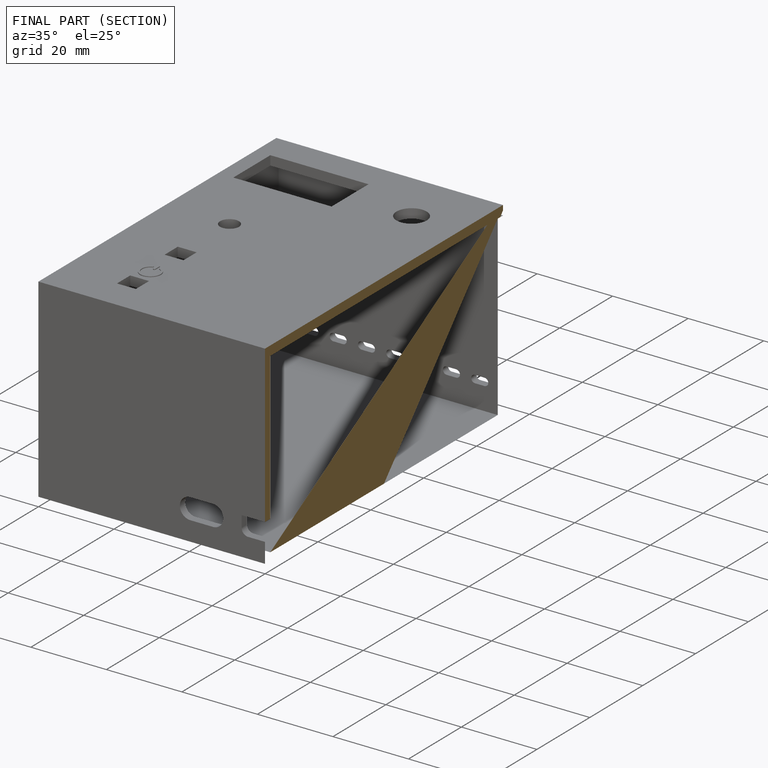
[diagram: finished part — half-section view (interior)]
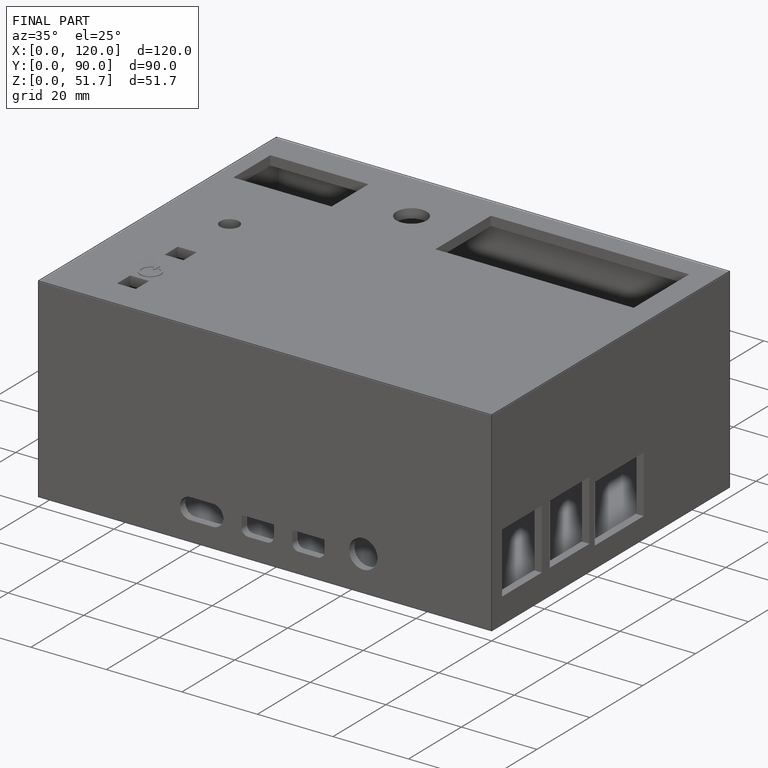
[diagram: finished part — iso view with bounding-box wireframe]
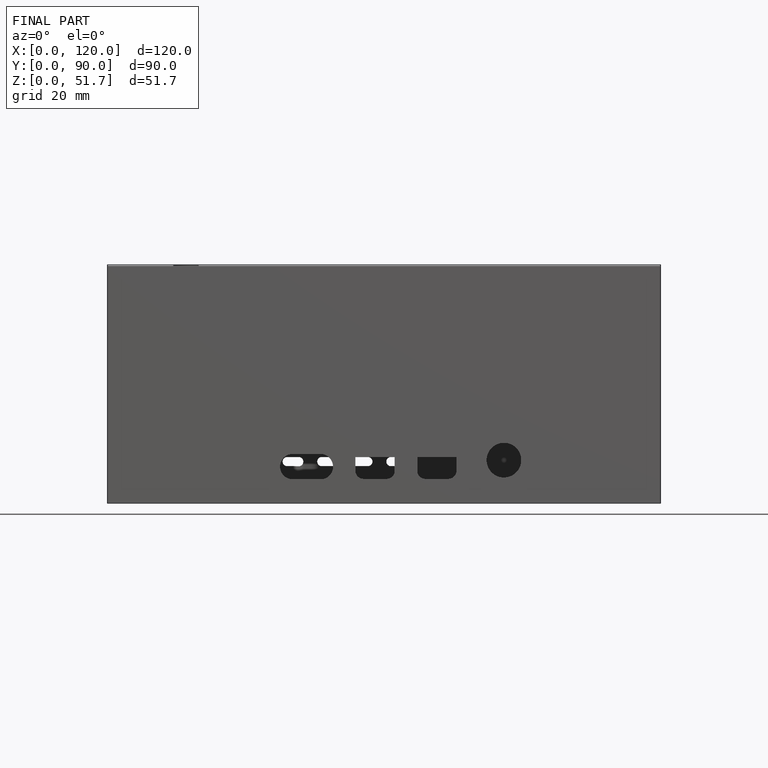
[diagram: finished part — front view with bounding-box wireframe]
